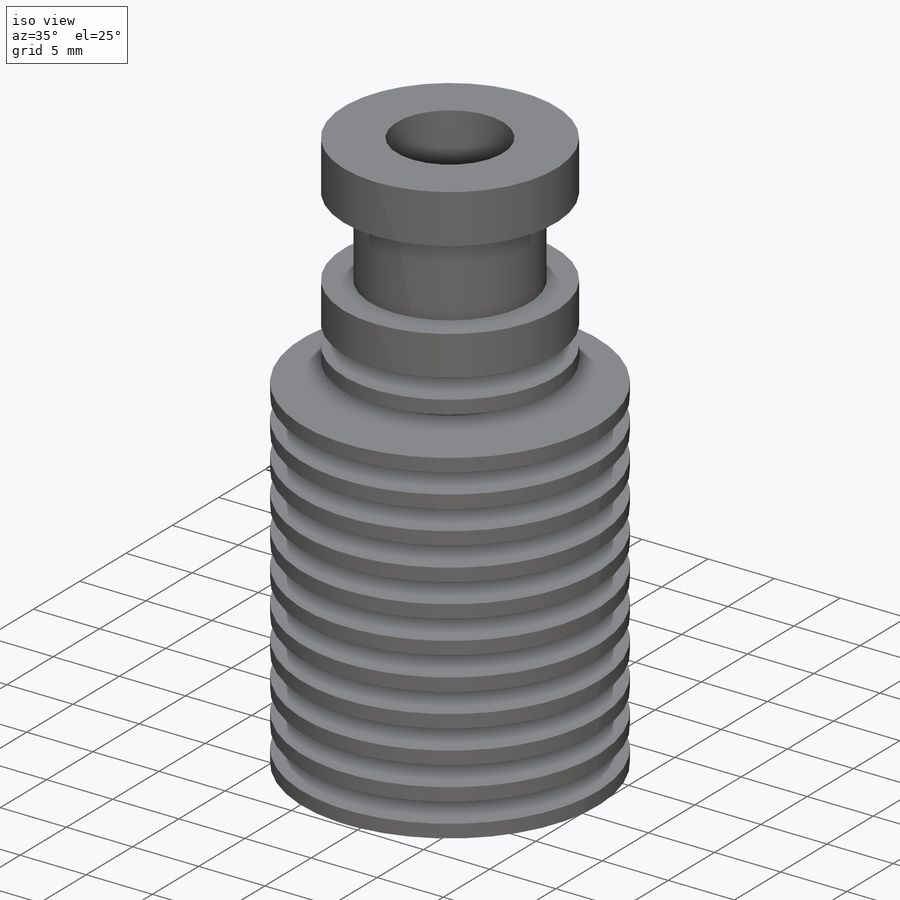
[diagram: iso view]
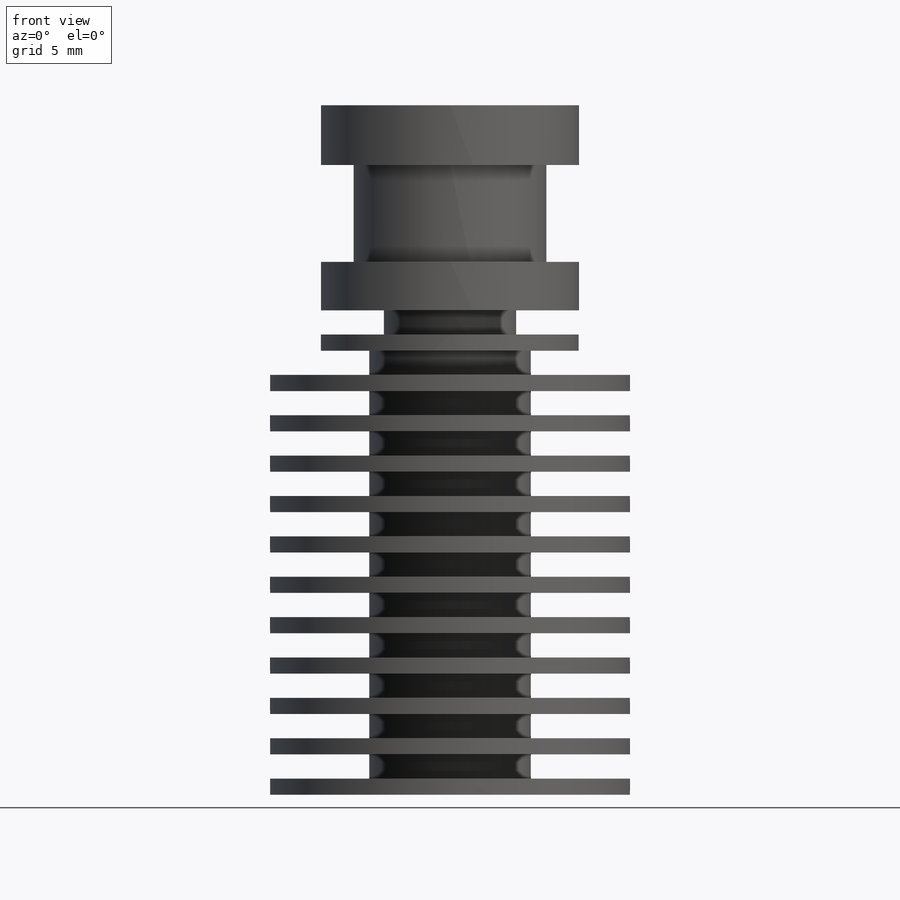
[diagram: front view]
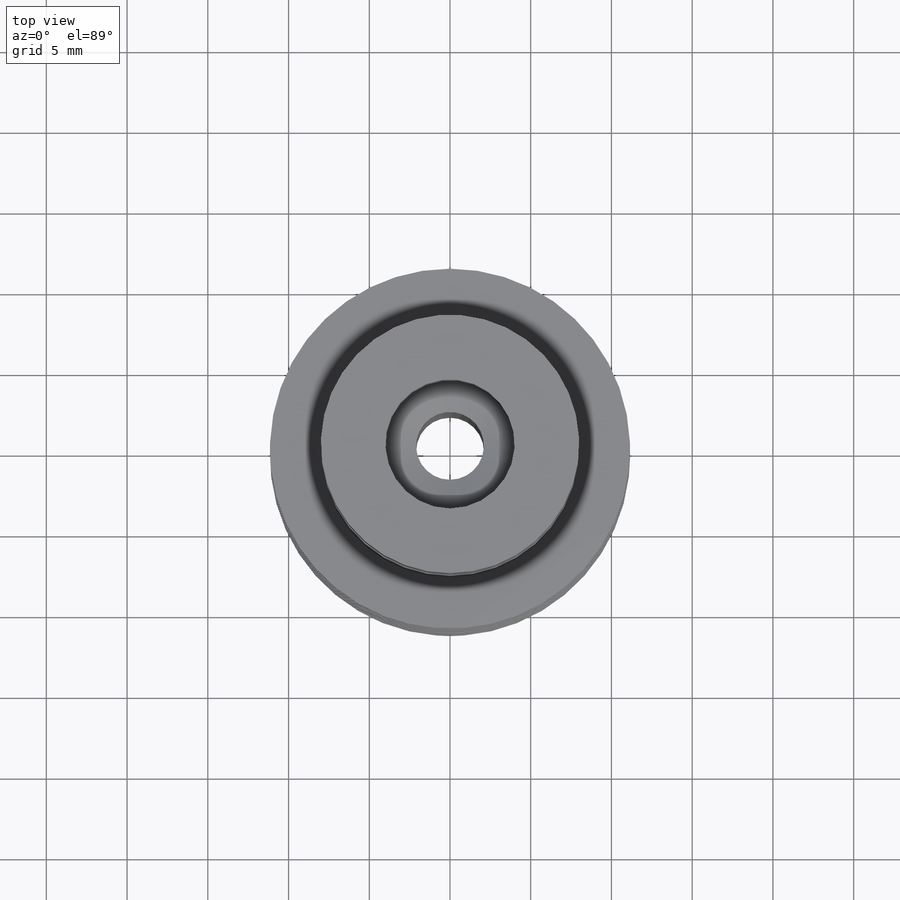
[diagram: top view]
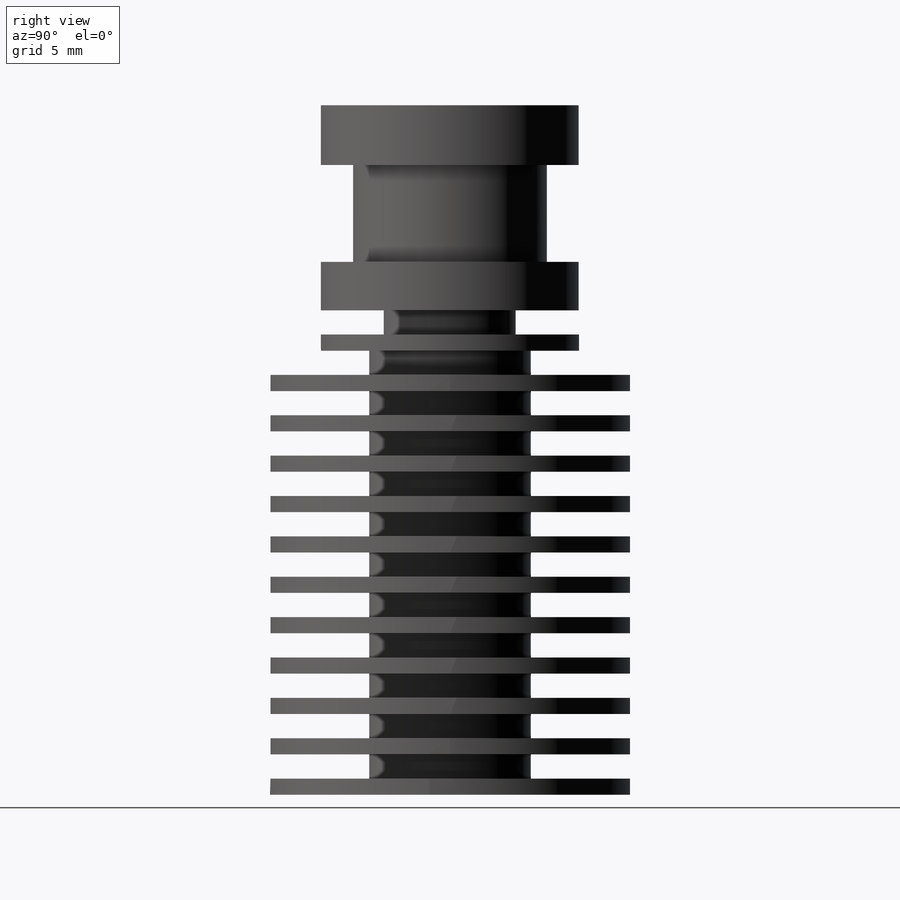
[diagram: right view]
SOLIDWORKS PART (.sldprt)
format: sldprt  version: not decoded by parser v0  size: 522,240 bytes
history: native  units: mm
features: sketch x7, cut_revolve x2, cut_extrude x2, chamfer x2, material x1, extrude x1, plane x1, helix x1, sweep x1 (+13 scaffold rows collapsed)
feature tree (31):
  scaffold x13  (default folders/planes/origin — collapsed)
  material  "6061-T6 (SS)"
  sketch  "Sketch1"  dims[D1=22.3mm]
  extrude  "Boss-Extrude1"  Depth=42.7mm
  sketch  "Sketch2"  dims[D1=2.1mm D2=3.7mm D3=6.0mm D4=3.0mm D5=1.5mm D6=8.0mm D7=6.0mm D8=8.0mm D9=2.0mm]
  cut_revolve  "Cut-Revolve1"  Angle=360deg
  sketch  "Sketch3"  dims[D1=8.0mm]
  cut_extrude  "Cut-Extrude1"  Depth=6mm
  chamfer  "Chamfer1"  Distance=2mm Angle=18deg
  sketch  "Sketch5"  dims[D1=6.0mm]
  cut_extrude  "Cut-Extrude2"  Depth=14.8mm
  chamfer  "Chamfer2"  Distance=1mm Angle=30deg
  sketch  "Sketch4"  dims[c1.D1=28.5mm c2.D1=3.0deg c2.D2=1.5mm c2.D3=1.0mm c2.D4=1.5mm c3.D4=177.0deg c4.D4=5.0mm c4.D2=1.5mm c4.D3=1.5mm c4.D6=8.0mm c4.D5=11.0]
  cut_revolve  "Cut-Revolve2"  Angle=360deg
  plane  "Plane1"  Offset=3mm
  sketch  "Sketch6"  dims[D1=7.29mm]
  helix  "Helix/Spiral1"  Pitch=14.8mm
  sketch  "Sketch7"  dims[c1.D1=~1.162336mm c2.D1=30.0deg c2.D2=0.505mm]
  sweep  "Cut-Sweep1"
decode coverage: 15 of 16 modeling features carry decoded parameters
note: ~ marks probable driven/reference dimensions
note: suppression state not decoded; provenance and decode notes live in map.json
